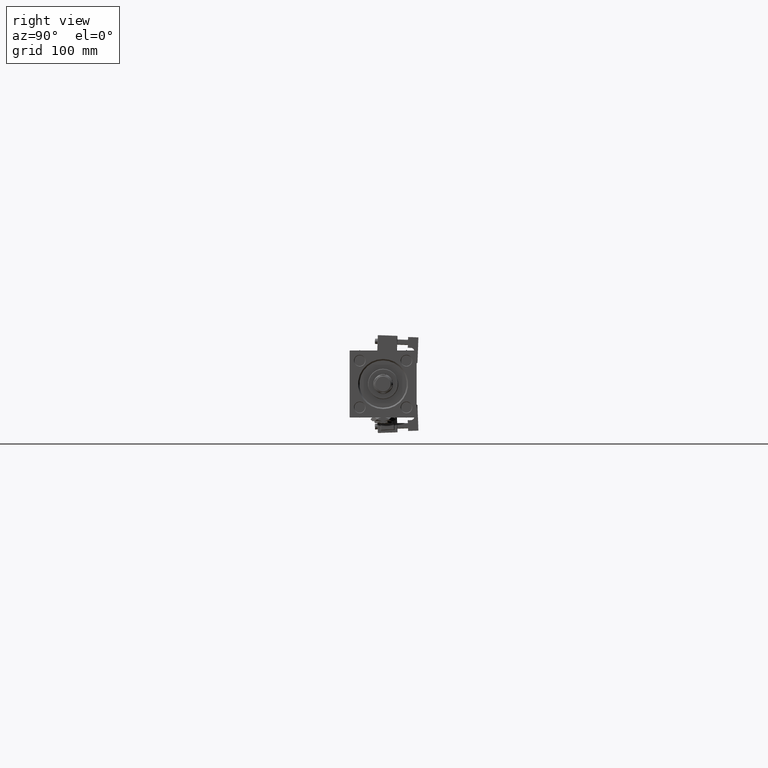
[diagram: clean part render]
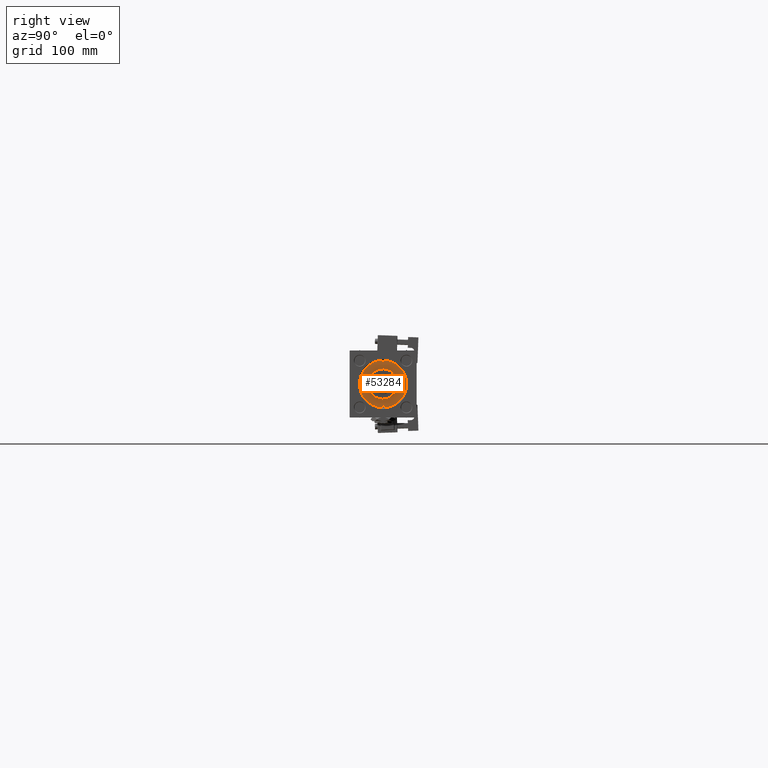
[diagram: same view with one face highlighted and labeled with its STEP entity id]
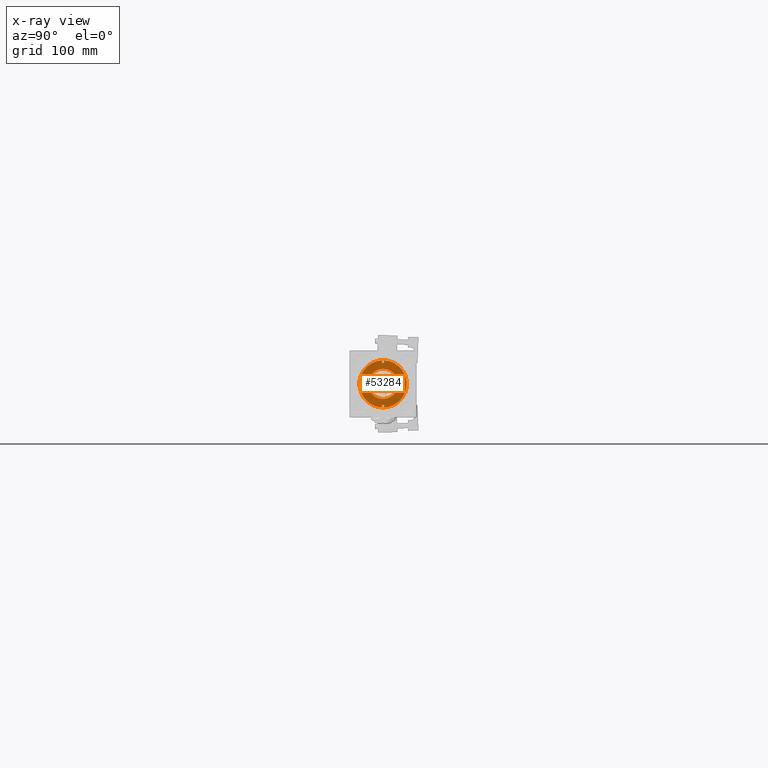
[diagram: x-ray of the same camera — body ghosted, the highlighted face saturated]
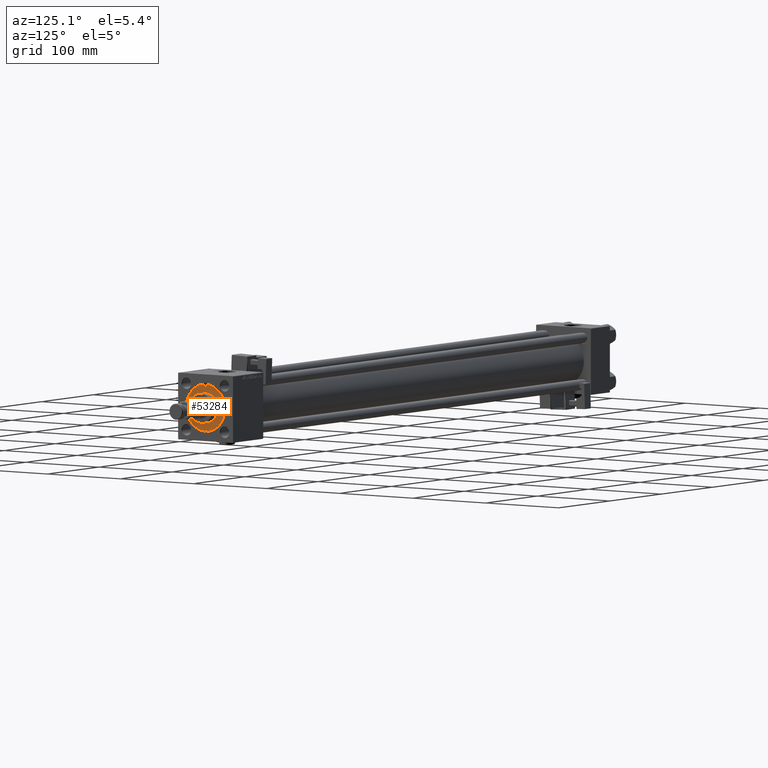
[diagram: same view with one face highlighted and labeled with its STEP entity id]
A machine part, right view. The second image highlights one B-rep face of the part: STEP entity #53284.
The next image is the same camera in x-ray: the body ghosted, the highlighted face saturated — about 0% of this face is hidden behind the body in this view.
A second angle (auxiliary view) of the same face is appended — the face is thin or edge-on in the first view.
In plain terms, the highlighted planar face has unit normal (1, 0, 0).
Its self-contained STEP definition (entity closure, byte-faithful):
#87 = EDGE_CURVE ( 'NONE', #34045, #38708, #48440, .T. ) ;
#604 = CARTESIAN_POINT ( 'NONE',  ( -23.50000000000000000, 0.000000000000000000, 28.69999999999999929 ) ) ;
#1828 = EDGE_LOOP ( 'NONE', ( #29470, #15133 ) ) ;
#2031 = DIRECTION ( 'NONE',  ( 1.000000000000000000, 0.000000000000000000, 0.000000000000000000 ) ) ;
#3078 = CIRCLE ( 'NONE', #51199, 17.00000000000000000 ) ;
#3179 = CARTESIAN_POINT ( 'NONE',  ( -24.75000000000000000, 0.000000000000000000, 28.69999999999999929 ) ) ;
#3671 = CARTESIAN_POINT ( 'NONE',  ( 17.00000000000000000, 2.081899558550500280E-15, 28.69999999999999929 ) ) ;
#5922 = ORIENTED_EDGE ( 'NONE', *, *, #8483, .F. ) ;
#6189 = DIRECTION ( 'NONE',  ( 1.000000000000000000, 0.000000000000000000, 0.000000000000000000 ) ) ;
#6760 = CARTESIAN_POINT ( 'NONE',  ( 0.000000000000000000, 0.000000000000000000, 28.69999999999999929 ) ) ;
#7460 = CARTESIAN_POINT ( 'NONE',  ( 26.50000000000000355, 3.245314017740486554E-15, 28.69999999999999929 ) ) ;
#8483 = EDGE_CURVE ( 'NONE', #45050, #14356, #17841, .T. ) ;
#8900 = EDGE_LOOP ( 'NONE', ( #40709, #5922 ) ) ;
#10165 = CIRCLE ( 'NONE', #34711, 1.250000000000001110 ) ;
#10766 = DIRECTION ( 'NONE',  ( 1.000000000000000000, 0.000000000000000000, 0.000000000000000000 ) ) ;
#11973 = DIRECTION ( 'NONE',  ( 0.000000000000000000, 0.000000000000000000, 1.000000000000000000 ) ) ;
#12395 = AXIS2_PLACEMENT_3D ( 'NONE', #6760, #18991, #24130 ) ;
#12901 = VERTEX_POINT ( 'NONE', #604 ) ;
#14356 = VERTEX_POINT ( 'NONE', #32709 ) ;
#15133 = ORIENTED_EDGE ( 'NONE', *, *, #48024, .F. ) ;
#15599 = CARTESIAN_POINT ( 'NONE',  ( 0.000000000000000000, 0.000000000000000000, 28.69999999999999929 ) ) ;
#15695 = CARTESIAN_POINT ( 'NONE',  ( 0.000000000000000000, 0.000000000000000000, 28.69999999999999929 ) ) ;
#16436 = DIRECTION ( 'NONE',  ( 0.000000000000000000, 0.000000000000000000, 1.000000000000000000 ) ) ;
#16760 = VERTEX_POINT ( 'NONE', #22263 ) ;
#17113 = AXIS2_PLACEMENT_3D ( 'NONE', #52291, #31240, #22131 ) ;
#17841 = CIRCLE ( 'NONE', #12395, 17.00000000000000000 ) ;
#18157 = AXIS2_PLACEMENT_3D ( 'NONE', #15599, #16436, #50607 ) ;
#18991 = DIRECTION ( 'NONE',  ( 0.000000000000000000, 0.000000000000000000, 1.000000000000000000 ) ) ;
#20245 = DIRECTION ( 'NONE',  ( 1.000000000000000000, 0.000000000000000000, 0.000000000000000000 ) ) ;
#20540 = FACE_BOUND ( 'NONE', #1828, .T. ) ;
#20962 = CARTESIAN_POINT ( 'NONE',  ( 23.50000000000000000, 1.530808498934188859E-16, 28.69999999999999929 ) ) ;
#21592 = DIRECTION ( 'NONE',  ( 0.000000000000000000, 0.000000000000000000, 1.000000000000000000 ) ) ;
#22131 = DIRECTION ( 'NONE',  ( 1.000000000000000000, 0.000000000000000000, 0.000000000000000000 ) ) ;
#22263 = CARTESIAN_POINT ( 'NONE',  ( -26.50000000000000355, 0.000000000000000000, 28.69999999999999929 ) ) ;
#23877 = DIRECTION ( 'NONE',  ( 0.000000000000000000, 0.000000000000000000, 1.000000000000000000 ) ) ;
#23884 = CARTESIAN_POINT ( 'NONE',  ( 26.00000000000000355, 0.000000000000000000, 28.69999999999999929 ) ) ;
#24129 = CARTESIAN_POINT ( 'NONE',  ( -24.75000000000000000, 0.000000000000000000, 28.69999999999999929 ) ) ;
#24130 = DIRECTION ( 'NONE',  ( 1.000000000000000000, 0.000000000000000000, 0.000000000000000000 ) ) ;
#25718 = EDGE_CURVE ( 'NONE', #38708, #34045, #28972, .T. ) ;
#28115 = DIRECTION ( 'NONE',  ( 0.000000000000000000, 0.000000000000000000, 1.000000000000000000 ) ) ;
#28499 = CARTESIAN_POINT ( 'NONE',  ( 24.75000000000000000, 0.000000000000000000, 28.69999999999999929 ) ) ;
#28972 = CIRCLE ( 'NONE', #17113, 1.250000000000001110 ) ;
#29364 = FACE_BOUND ( 'NONE', #8900, .T. ) ;
#29470 = ORIENTED_EDGE ( 'NONE', *, *, #51095, .F. ) ;
#31240 = DIRECTION ( 'NONE',  ( 0.000000000000000000, 0.000000000000000000, 1.000000000000000000 ) ) ;
#31372 = ORIENTED_EDGE ( 'NONE', *, *, #43071, .T. ) ;
#31974 = AXIS2_PLACEMENT_3D ( 'NONE', #40662, #23877, #10766 ) ;
#32709 = CARTESIAN_POINT ( 'NONE',  ( -17.00000000000000000, 0.000000000000000000, 28.69999999999999929 ) ) ;
#32808 = PLANE ( 'NONE',  #54813 ) ;
#32893 = EDGE_CURVE ( 'NONE', #16760, #51330, #48326, .T. ) ;
#34045 = VERTEX_POINT ( 'NONE', #23884 ) ;
#34298 = EDGE_LOOP ( 'NONE', ( #53487, #51630 ) ) ;
#34409 = DIRECTION ( 'NONE',  ( 1.000000000000000000, 0.000000000000000000, 0.000000000000000000 ) ) ;
#34711 = AXIS2_PLACEMENT_3D ( 'NONE', #3179, #11973, #20245 ) ;
#37488 = EDGE_LOOP ( 'NONE', ( #43858, #31372 ) ) ;
#38175 = DIRECTION ( 'NONE',  ( 1.000000000000000000, 0.000000000000000000, -0.000000000000000000 ) ) ;
#38282 = VERTEX_POINT ( 'NONE', #46091 ) ;
#38708 = VERTEX_POINT ( 'NONE', #20962 ) ;
#40662 = CARTESIAN_POINT ( 'NONE',  ( 0.000000000000000000, 0.000000000000000000, 28.69999999999999929 ) ) ;
#40709 = ORIENTED_EDGE ( 'NONE', *, *, #50908, .F. ) ;
#41326 = FACE_BOUND ( 'NONE', #34298, .T. ) ;
#42379 = CARTESIAN_POINT ( 'NONE',  ( 0.000000000000000000, 0.000000000000000000, 28.69999999999999929 ) ) ;
#43071 = EDGE_CURVE ( 'NONE', #51330, #16760, #45439, .T. ) ;
#43858 = ORIENTED_EDGE ( 'NONE', *, *, #32893, .T. ) ;
#45050 = VERTEX_POINT ( 'NONE', #3671 ) ;
#45439 = CIRCLE ( 'NONE', #18157, 26.50000000000000355 ) ;
#46091 = CARTESIAN_POINT ( 'NONE',  ( -26.00000000000000355, 1.530808498934188859E-16, 28.69999999999999929 ) ) ;
#46159 = FACE_OUTER_BOUND ( 'NONE', #37488, .T. ) ;
#46712 = DIRECTION ( 'NONE',  ( 0.000000000000000000, 0.000000000000000000, 1.000000000000000000 ) ) ;
#47568 = CIRCLE ( 'NONE', #54853, 1.250000000000001110 ) ;
#48024 = EDGE_CURVE ( 'NONE', #38282, #12901, #10165, .T. ) ;
#48326 = CIRCLE ( 'NONE', #31974, 26.50000000000000355 ) ;
#48440 = CIRCLE ( 'NONE', #53885, 1.250000000000001110 ) ;
#50607 = DIRECTION ( 'NONE',  ( 1.000000000000000000, 0.000000000000000000, 0.000000000000000000 ) ) ;
#50908 = EDGE_CURVE ( 'NONE', #14356, #45050, #3078, .T. ) ;
#51095 = EDGE_CURVE ( 'NONE', #12901, #38282, #47568, .T. ) ;
#51199 = AXIS2_PLACEMENT_3D ( 'NONE', #42379, #21592, #34409 ) ;
#51330 = VERTEX_POINT ( 'NONE', #7460 ) ;
#51630 = ORIENTED_EDGE ( 'NONE', *, *, #25718, .F. ) ;
#52291 = CARTESIAN_POINT ( 'NONE',  ( 24.75000000000000000, 0.000000000000000000, 28.69999999999999929 ) ) ;
#53284 = ADVANCED_FACE ( 'NONE', ( #20540, #41326, #29364, #46159 ), #32808, .T. ) ;
#53487 = ORIENTED_EDGE ( 'NONE', *, *, #87, .F. ) ;
#53885 = AXIS2_PLACEMENT_3D ( 'NONE', #28499, #54948, #2031 ) ;
#54813 = AXIS2_PLACEMENT_3D ( 'NONE', #15695, #46712, #38175 ) ;
#54853 = AXIS2_PLACEMENT_3D ( 'NONE', #24129, #28115, #6189 ) ;
#54948 = DIRECTION ( 'NONE',  ( 0.000000000000000000, 0.000000000000000000, 1.000000000000000000 ) ) ;